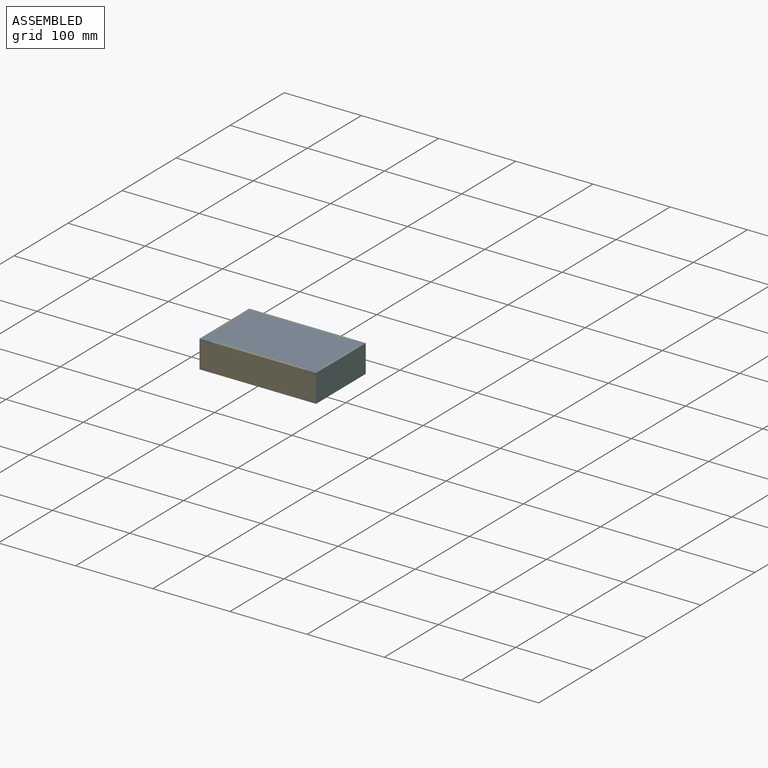
[diagram: assembled view]
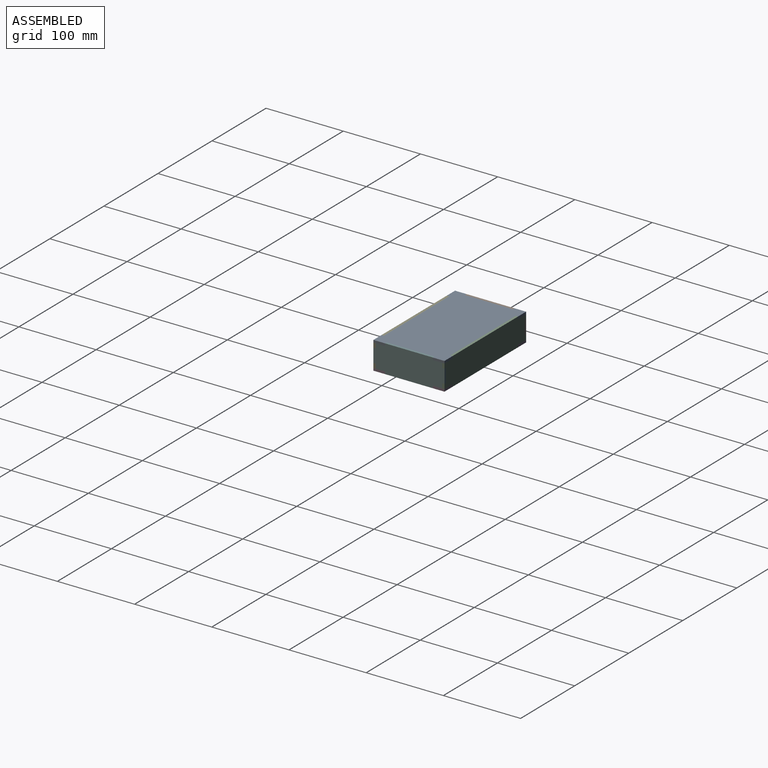
[diagram: assembled view, second angle]
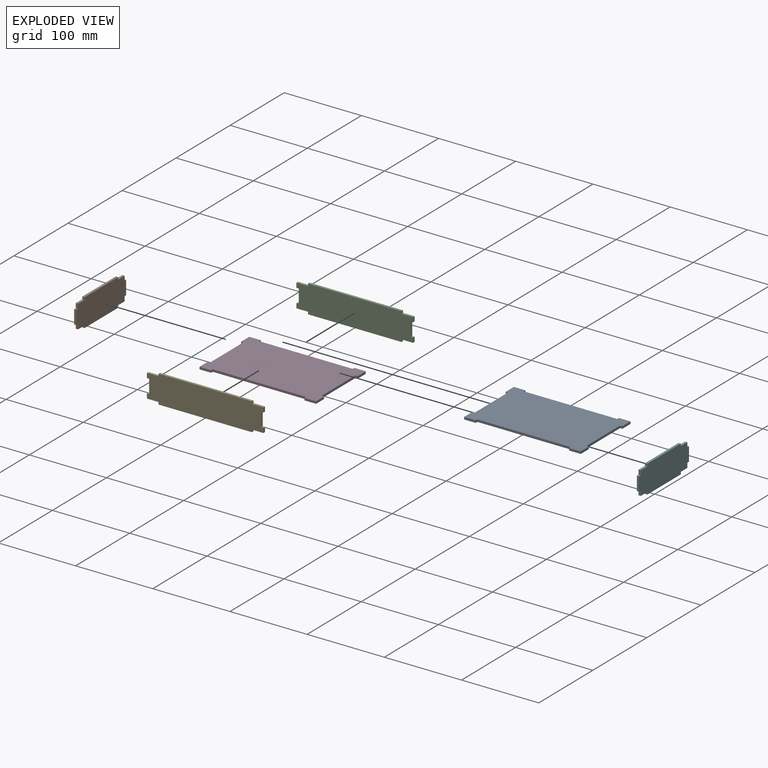
[diagram: exploded view]
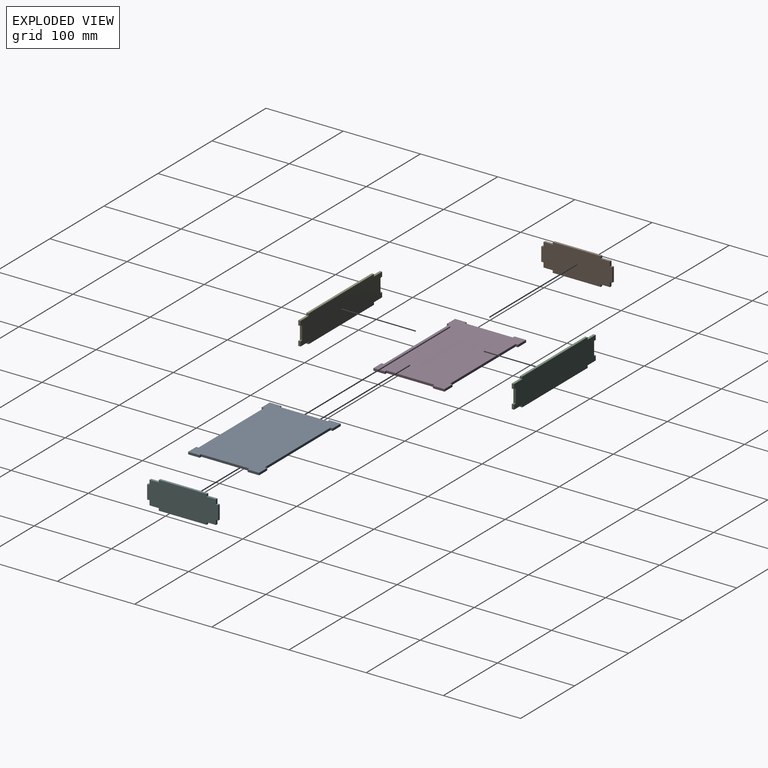
[diagram: exploded view, second angle]
ASSEMBLY  parts=6 mates=5
PART A: 22 faces, bbox 151x92x3 mm
  f0: plane 15x3mm, normal (0,1,0), area 45mm2, adj f1,f19,f20,f21
  f1: plane 3x3mm, normal (-1,0,0), area 9mm2, adj f0,f2,f20,f21
  f2: plane 121x3mm, normal (0,1,0), area 363mm2, adj f1,f3,f20,f21
  f3: plane 3x3mm, normal (1,0,0), area 9mm2, adj f2,f4,f20,f21
  f4: plane 15x3mm, normal (0,1,0), area 45mm2, adj f3,f5,f20,f21
  f5: plane 15x3mm, normal (-1,0,0), area 45mm2, adj f4,f6,f20,f21
  f6: plane 3x3mm, normal (0,-1,0), area 9mm2, adj f5,f7,f20,f21
  f7: plane 62x3mm, normal (-1,0,0), area 186mm2, adj f6,f8,f20,f21
  f8: plane 3x3mm, normal (0,1,0), area 9mm2, adj f7,f9,f20,f21
  f9: plane 15x3mm, normal (-1,0,0), area 45mm2, adj f8,f10,f20,f21
  f10: plane 15x3mm, normal (0,-1,0), area 45mm2, adj f9,f11,f20,f21
  f11: plane 3x3mm, normal (1,0,0), area 9mm2, adj f10,f12,f20,f21
  f12: plane 121x3mm, normal (0,-1,0), area 363mm2, adj f11,f13,f20,f21
  f13: plane 3x3mm, normal (-1,0,0), area 9mm2, adj f12,f14,f20,f21
  f14: plane 15x3mm, normal (0,-1,0), area 45mm2, adj f13,f15,f20,f21
  f15: plane 15x3mm, normal (1,0,0), area 45mm2, adj f14,f16,f20,f21
  f16: plane 3x3mm, normal (0,1,0), area 9mm2, adj f15,f17,f20,f21
  f17: plane 62x3mm, normal (1,0,0), area 186mm2, adj f16,f18,f20,f21
  f18: plane 3x3mm, normal (0,-1,0), area 9mm2, adj f17,f19,f20,f21
  f19: plane 15x3mm, normal (1,0,0), area 45mm2, adj f0,f18,f20,f21
  f20: plane 151x92mm, normal (0,0,1), area 12794mm2, adj f0,f1,f2,f3,f4,f5,f6,f7
  f21: plane 151x92mm, normal (0,0,-1), area 12794mm2, adj f0,f1,f2,f3,f4,f5,f6,f7
PART B: 22 faces, bbox 3x92x36 mm
  f0: plane 18x3mm, normal (0,-1,0), area 54mm2, adj f1,f19,f20,f21
  f1: plane 3x3mm, normal (0,0,-1), area 9mm2, adj f0,f2,f20,f21
  f2: plane 6x3mm, normal (0,-1,0), area 18mm2, adj f1,f3,f20,f21
  f3: plane 12x3mm, normal (0,0,-1), area 36mm2, adj f2,f4,f20,f21
  f4: plane 3x3mm, normal (0,-1,0), area 9mm2, adj f3,f5,f20,f21
  f5: plane 62x3mm, normal (0,0,-1), area 186mm2, adj f4,f6,f20,f21
  f6: plane 3x3mm, normal (0,1,0), area 9mm2, adj f5,f7,f20,f21
  f7: plane 12x3mm, normal (0,0,-1), area 36mm2, adj f6,f8,f20,f21
  f8: plane 6x3mm, normal (0,1,0), area 18mm2, adj f7,f9,f20,f21
  f9: plane 3x3mm, normal (0,0,-1), area 9mm2, adj f8,f10,f20,f21
  f10: plane 18x3mm, normal (0,1,0), area 54mm2, adj f9,f11,f20,f21
  f11: plane 3x3mm, normal (0,0,1), area 9mm2, adj f10,f12,f20,f21
  f12: plane 6x3mm, normal (0,1,0), area 18mm2, adj f11,f13,f20,f21
  f13: plane 12x3mm, normal (0,0,1), area 36mm2, adj f12,f14,f20,f21
  f14: plane 3x3mm, normal (0,1,0), area 9mm2, adj f13,f15,f20,f21
  f15: plane 62x3mm, normal (0,0,1), area 186mm2, adj f14,f16,f20,f21
  f16: plane 3x3mm, normal (0,-1,0), area 9mm2, adj f15,f17,f20,f21
  f17: plane 12x3mm, normal (0,0,1), area 36mm2, adj f16,f18,f20,f21
  f18: plane 6x3mm, normal (0,-1,0), area 18mm2, adj f17,f19,f20,f21
  f19: plane 3x3mm, normal (0,0,1), area 9mm2, adj f0,f18,f20,f21
  f20: plane 92x36mm, normal (1,0,0), area 3060mm2, adj f0,f1,f2,f3,f4,f5,f6,f7
  f21: plane 92x36mm, normal (-1,0,0), area 3060mm2, adj f0,f1,f2,f3,f4,f5,f6,f7
PART C: 22 faces, bbox 151x3x36 mm
  f0: plane 6x3mm, normal (1,0,0), area 18mm2, adj f1,f19,f20,f21
  f1: plane 15x3mm, normal (0,0,1), area 45mm2, adj f0,f2,f20,f21
  f2: plane 3x3mm, normal (1,0,0), area 9mm2, adj f1,f3,f20,f21
  f3: plane 121x3mm, normal (0,0,1), area 363mm2, adj f2,f4,f20,f21
  f4: plane 3x3mm, normal (-1,0,0), area 9mm2, adj f3,f5,f20,f21
  f5: plane 15x3mm, normal (0,0,1), area 45mm2, adj f4,f6,f20,f21
  f6: plane 6x3mm, normal (-1,0,0), area 18mm2, adj f5,f7,f20,f21
  f7: plane 3x3mm, normal (0,0,-1), area 9mm2, adj f6,f8,f20,f21
  f8: plane 18x3mm, normal (-1,0,0), area 54mm2, adj f7,f9,f20,f21
  f9: plane 3x3mm, normal (0,0,1), area 9mm2, adj f8,f10,f20,f21
  f10: plane 6x3mm, normal (-1,0,0), area 18mm2, adj f9,f11,f20,f21
  f11: plane 15x3mm, normal (0,0,-1), area 45mm2, adj f10,f12,f20,f21
  f12: plane 3x3mm, normal (-1,0,0), area 9mm2, adj f11,f13,f20,f21
  f13: plane 121x3mm, normal (0,0,-1), area 363mm2, adj f12,f14,f20,f21
  f14: plane 3x3mm, normal (1,0,0), area 9mm2, adj f13,f15,f20,f21
  f15: plane 15x3mm, normal (0,0,-1), area 45mm2, adj f14,f16,f20,f21
  f16: plane 6x3mm, normal (1,0,0), area 18mm2, adj f15,f17,f20,f21
  f17: plane 3x3mm, normal (0,0,1), area 9mm2, adj f16,f18,f20,f21
  f18: plane 18x3mm, normal (1,0,0), area 54mm2, adj f17,f19,f20,f21
  f19: plane 3x3mm, normal (0,0,-1), area 9mm2, adj f0,f18,f20,f21
  f20: plane 151x36mm, normal (0,-1,0), area 5148mm2, adj f0,f1,f2,f3,f4,f5,f6,f7
  f21: plane 151x36mm, normal (0,1,0), area 5148mm2, adj f0,f1,f2,f3,f4,f5,f6,f7
PART D: same geometry as A
PART E: same geometry as C
PART F: same geometry as B
PLACE A t=(3.69,20.7,15.92)mm fixed
PLACE B rot(axis=(0,1,0),180deg) t=(-70.31,20.7,-0.58)mm
PLACE C t=(3.69,66.7,-17.08)mm
PLACE D t=(3.69,20.7,-17.08)mm
PLACE E t=(3.69,-22.3,-17.08)mm
PLACE F rot(axis=(1,0,0),180deg) t=(77.69,20.7,-0.58)mm
MATE fastened A.f17 <-> F.f21  axis (1,0,0) through (76.19,20.7,17.42)mm
MATE fastened E.f21 <-> D.f12  axis (0,1,0) through (64.19,-22.3,-15.58)mm
MATE fastened B.f21 <-> A.f7  axis (1,0,0) through (-68.81,20.7,17.42)mm
MATE fastened C.f20 <-> A.f2  axis (0,-1,0) through (-56.81,63.7,17.42)mm
MATE fastened E.f21 <-> A.f12  axis (0,1,0) through (64.19,-22.3,17.42)mm
